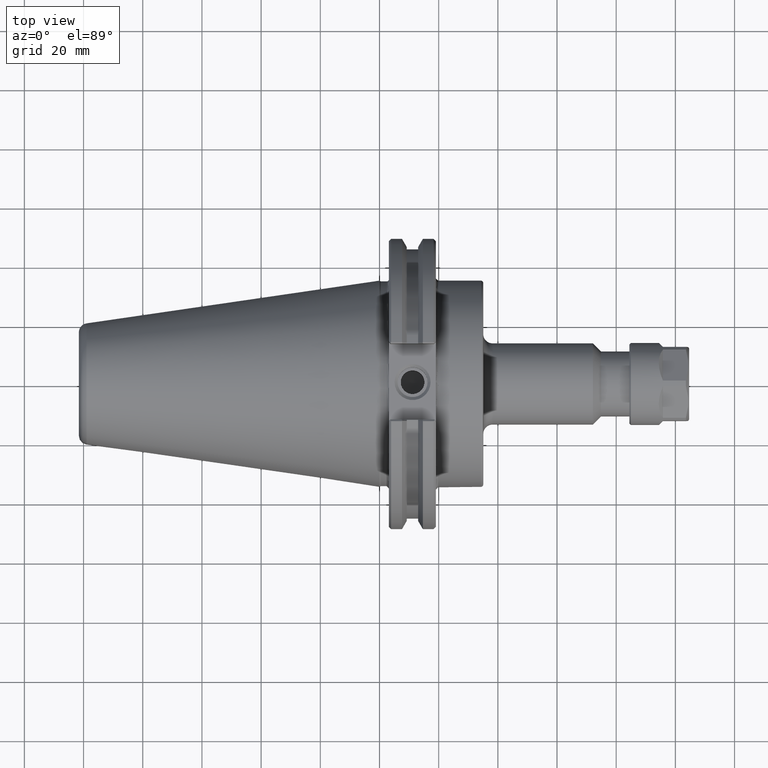
[diagram: clean part render]
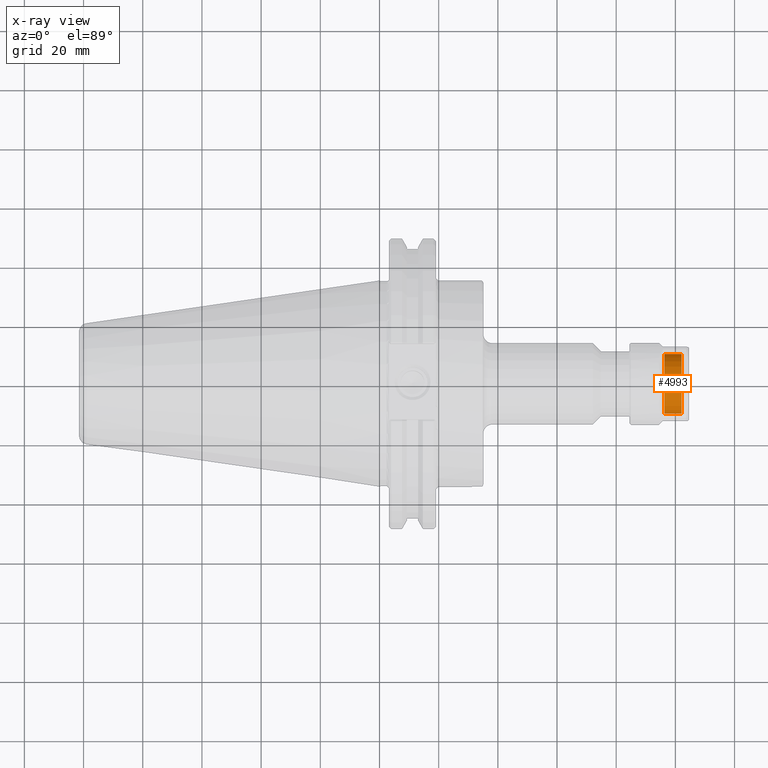
[diagram: x-ray — body ghosted, one internal face saturated and labeled with its STEP entity id]
A machine part, top view, then the same camera in x-ray: the body is ghosted and one INTERNAL B-rep face — a face not visible from any outside direction — is saturated and labeled: STEP entity #4993.
In plain terms, the highlighted cylindrical surface (bore or boss wall) has radius 10.0838 mm, axis along (1, 0, -0).
Its self-contained STEP definition (entity closure, byte-faithful):
#4930=CARTESIAN_POINT('',(0.33,0.397,0.0));
#4931=VERTEX_POINT('',#4930);
#4932=CARTESIAN_POINT('',(0.33,0.0,0.0));
#4933=DIRECTION('',(-1.0,0.0,0.0));
#4934=DIRECTION('',(0.0,1.0,0.0));
#4935=AXIS2_PLACEMENT_3D('',#4932,#4933,#4934);
#4936=CIRCLE('',#4935,0.397);
#4937=EDGE_CURVE('',#4931,#4931,#4936,.T.);
#4967=CARTESIAN_POINT('',(0.101,0.397,0.0));
#4968=VERTEX_POINT('',#4967);
#4969=CARTESIAN_POINT('',(0.101,0.0,0.0));
#4970=DIRECTION('',(-1.0,0.0,0.0));
#4971=DIRECTION('',(0.0,1.0,0.0));
#4972=AXIS2_PLACEMENT_3D('',#4969,#4970,#4971);
#4973=CIRCLE('',#4972,0.397);
#4974=EDGE_CURVE('',#4968,#4968,#4973,.T.);
#4982=CARTESIAN_POINT('',(0.2155,0.0,0.0));
#4983=DIRECTION('',(-1.0,0.0,0.0));
#4984=DIRECTION('',(0.0,1.0,0.0));
#4985=AXIS2_PLACEMENT_3D('',#4982,#4983,#4984);
#4986=CYLINDRICAL_SURFACE('',#4985,0.397);
#4987=ORIENTED_EDGE('',*,*,#4974,.T.);
#4988=EDGE_LOOP('',(#4987));
#4989=FACE_OUTER_BOUND('',#4988,.T.);
#4990=ORIENTED_EDGE('',*,*,#4937,.F.);
#4991=EDGE_LOOP('',(#4990));
#4992=FACE_BOUND('',#4991,.T.);
#4993=ADVANCED_FACE('',(#4989,#4992),#4986,.F.);